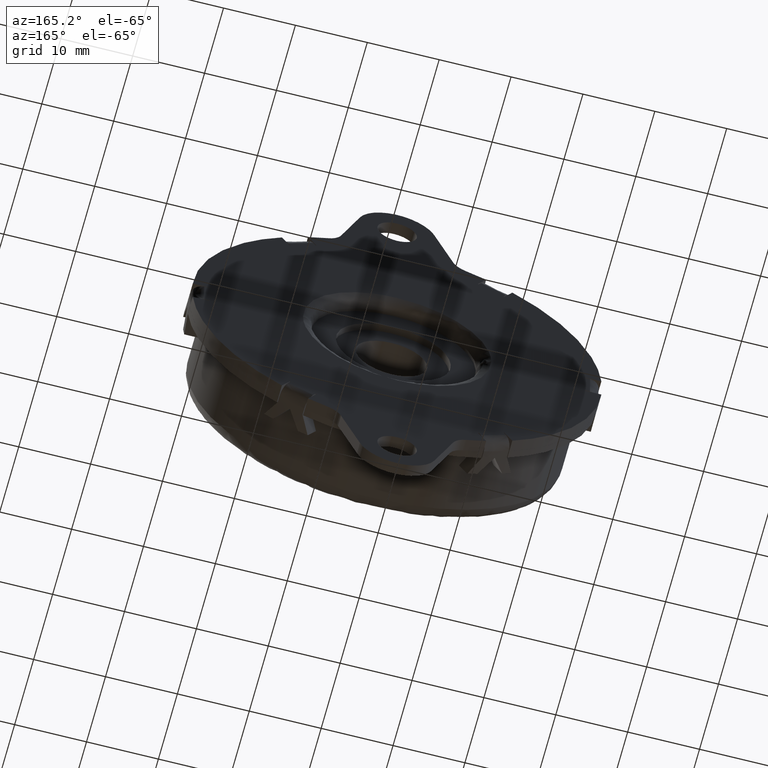
[diagram: clean part render]
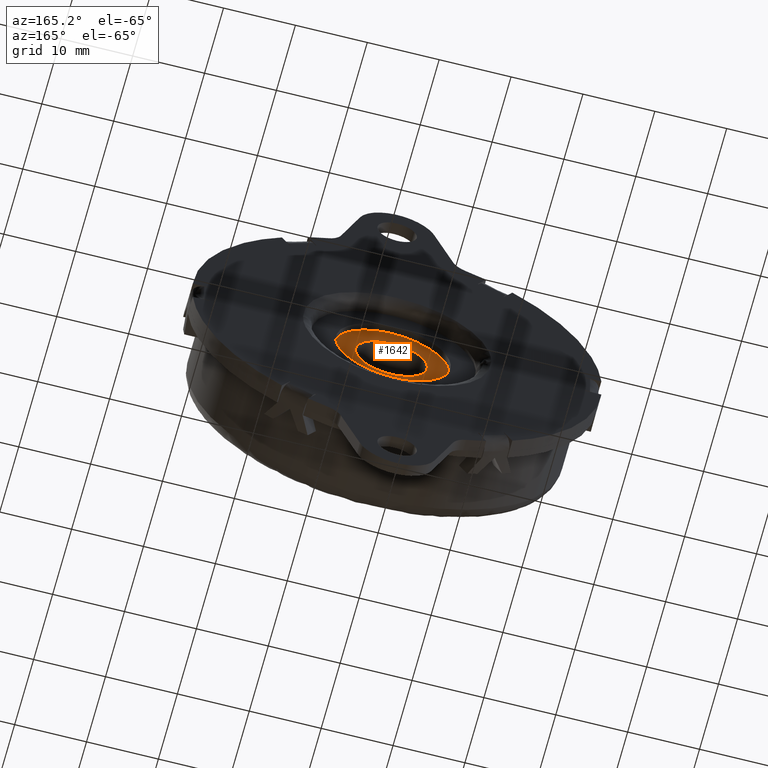
[diagram: same view with one face highlighted and labeled with its STEP entity id]
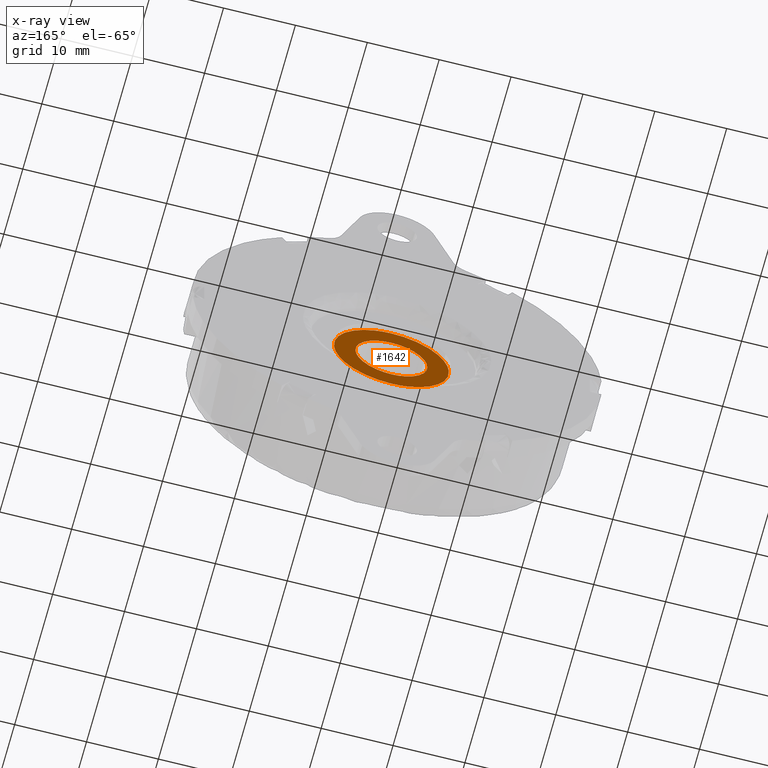
[diagram: x-ray of the same camera — body ghosted, the highlighted face saturated]
A machine part, auxiliary view. The second image highlights one B-rep face of the part: STEP entity #1642.
The next image is the same camera in x-ray: the body ghosted, the highlighted face saturated — about 0% of this face is hidden behind the body in this view.
In plain terms, the highlighted face is a freeform B-spline surface patch.
Its self-contained STEP definition (entity closure, byte-faithful):
#361=CARTESIAN_POINT('',(7.985078795888038,-2.999999999999397,-0.488381637056976));
#362=VERTEX_POINT('',#361);
#363=CARTESIAN_POINT('',(0.0,-3.0,8.0));
#364=VERTEX_POINT('',#363);
#365=CARTESIAN_POINT('',(7.985078795888039,-2.999999999999397,-0.488381637056975));
#366=CARTESIAN_POINT('',(7.999999999997245,-2.999999999999405,-0.244418757413873));
#367=CARTESIAN_POINT('',(7.999999999997288,-2.999999999999414,1.651169E-013));
#368=CARTESIAN_POINT('',(7.999999999998685,-2.999999999999716,8.000000000000080));
#369=CARTESIAN_POINT('',(0.0,-3.0,8.0));
#377=(BOUNDED_CURVE()B_SPLINE_CURVE(2,(#365,#366,#367,#368,#369),.UNSPECIFIED.,.F.,.U.)B_SPLINE_CURVE_WITH_KNOTS((3,2,3),(0.239333106570973,0.250000000000000,0.500000000000000),.UNSPECIFIED.)CURVE()GEOMETRIC_REPRESENTATION_ITEM()RATIONAL_B_SPLINE_CURVE((0.976072350997929,0.987502956995329,1.0,0.707106781186548,1.0))REPRESENTATION_ITEM(''));
#378=EDGE_CURVE('',#362,#364,#377,.T.);
#380=CARTESIAN_POINT('',(-7.985078795888038,-2.999999999999397,0.488381637056977));
#381=VERTEX_POINT('',#380);
#382=CARTESIAN_POINT('',(0.0,-3.0,8.0));
#383=CARTESIAN_POINT('',(-7.525654841935414,-2.999999999999699,7.999999999999914));
#384=CARTESIAN_POINT('',(-7.985078795888039,-2.999999999999397,0.488381637056977));
#392=(BOUNDED_CURVE()B_SPLINE_CURVE(2,(#382,#383,#384),.UNSPECIFIED.,.F.,.U.)B_SPLINE_CURVE_WITH_KNOTS((3,3),(0.500000000000000,0.739333106570973),.UNSPECIFIED.)CURVE()GEOMETRIC_REPRESENTATION_ITEM()RATIONAL_B_SPLINE_CURVE((1.0,0.719603824191218,0.976072350997929))REPRESENTATION_ITEM(''));
#393=EDGE_CURVE('',#364,#381,#392,.T.);
#428=CARTESIAN_POINT('',(0.0,-3.0,-8.0));
#429=VERTEX_POINT('',#428);
#430=CARTESIAN_POINT('',(0.0,-3.0,-8.0));
#431=CARTESIAN_POINT('',(7.525654841935418,-2.999999999999699,-7.999999999999915));
#432=CARTESIAN_POINT('',(7.985078795888039,-2.999999999999397,-0.488381637056975));
#440=(BOUNDED_CURVE()B_SPLINE_CURVE(2,(#430,#431,#432),.UNSPECIFIED.,.F.,.U.)B_SPLINE_CURVE_WITH_KNOTS((3,3),(0.0,0.239333106570973),.UNSPECIFIED.)CURVE()GEOMETRIC_REPRESENTATION_ITEM()RATIONAL_B_SPLINE_CURVE((1.0,0.719603824191218,0.976072350997929))REPRESENTATION_ITEM(''));
#441=EDGE_CURVE('',#429,#362,#440,.T.);
#447=CARTESIAN_POINT('',(-7.985078795888039,-2.999999999999397,0.488381637056977));
#448=CARTESIAN_POINT('',(-7.999999999997246,-2.999999999999405,0.244418757413872));
#449=CARTESIAN_POINT('',(-7.999999999997288,-2.999999999999415,-1.673944E-013));
#450=CARTESIAN_POINT('',(-7.999999999998687,-2.999999999999718,-8.000000000000082));
#451=CARTESIAN_POINT('',(0.0,-3.0,-8.0));
#459=(BOUNDED_CURVE()B_SPLINE_CURVE(2,(#447,#448,#449,#450,#451),.UNSPECIFIED.,.F.,.U.)B_SPLINE_CURVE_WITH_KNOTS((3,2,3),(0.739333106570973,0.750000000000000,1.0),.UNSPECIFIED.)CURVE()GEOMETRIC_REPRESENTATION_ITEM()RATIONAL_B_SPLINE_CURVE((0.976072350997929,0.987502956995329,1.0,0.707106781186548,1.0))REPRESENTATION_ITEM(''));
#460=EDGE_CURVE('',#381,#429,#459,.T.);
#1565=CARTESIAN_POINT('',(-8.799003098473435,-3.0,-8.799199968988896));
#1566=CARTESIAN_POINT('',(-8.799003098473435,-3.0,8.799200398142338));
#1567=CARTESIAN_POINT('',(8.799002812371139,-3.0,-8.799199968988896));
#1568=CARTESIAN_POINT('',(8.799002812371139,-3.0,8.799200398142338));
#1569=B_SPLINE_SURFACE_WITH_KNOTS('',1,1,((#1565,#1567),(#1566,#1568)),.UNSPECIFIED.,.F.,.F.,.U.,(2,2),(2,2),(0.0,17.598400367131230),(0.0,17.598005910844570),.UNSPECIFIED.);
#1570=ORIENTED_EDGE('',*,*,#460,.F.);
#1571=ORIENTED_EDGE('',*,*,#393,.F.);
#1572=ORIENTED_EDGE('',*,*,#378,.F.);
#1573=ORIENTED_EDGE('',*,*,#441,.F.);
#1574=EDGE_LOOP('',(#1570,#1571,#1572,#1573));
#1575=FACE_OUTER_BOUND('',#1574,.T.);
#1576=CARTESIAN_POINT('',(0.0,-3.0,-5.0));
#1577=VERTEX_POINT('',#1576);
#1578=CARTESIAN_POINT('',(4.999809615318942,-3.0,0.043632677711114));
#1579=VERTEX_POINT('',#1578);
#1580=CARTESIAN_POINT('',(0.0,-3.0,-5.0));
#1581=CARTESIAN_POINT('',(5.000000000000001,-3.0,-5.000000000000001));
#1582=CARTESIAN_POINT('',(5.0,-3.0,2.886697E-016));
#1583=CARTESIAN_POINT('',(4.999999999999999,-3.0,0.021816754213136));
#1584=CARTESIAN_POINT('',(4.999809615318942,-3.000000000000000,0.043632677711114));
#1592=(BOUNDED_CURVE()B_SPLINE_CURVE(2,(#1580,#1581,#1582,#1583,#1584),.UNSPECIFIED.,.F.,.U.)B_SPLINE_CURVE_WITH_KNOTS((3,2,3),(0.0,0.250000000000000,0.251539894342711),.UNSPECIFIED.)CURVE()GEOMETRIC_REPRESENTATION_ITEM()RATIONAL_B_SPLINE_CURVE((1.0,0.707106781186548,1.0,0.998195901557323,0.996414028082530))REPRESENTATION_ITEM(''));
#1593=EDGE_CURVE('',#1577,#1579,#1592,.T.);
#1594=ORIENTED_EDGE('',*,*,#1593,.T.);
#1595=CARTESIAN_POINT('',(0.0,-3.0,5.0));
#1596=VERTEX_POINT('',#1595);
#1597=CARTESIAN_POINT('',(4.999809615318942,-3.000000000000000,0.043632677711114));
#1598=CARTESIAN_POINT('',(4.956556052757536,-3.0,5.0));
#1599=CARTESIAN_POINT('',(0.0,-3.0,5.0));
#1607=(BOUNDED_CURVE()B_SPLINE_CURVE(2,(#1597,#1598,#1599),.UNSPECIFIED.,.F.,.U.)B_SPLINE_CURVE_WITH_KNOTS((3,3),(0.251539894342711,0.500000000000000),.UNSPECIFIED.)CURVE()GEOMETRIC_REPRESENTATION_ITEM()RATIONAL_B_SPLINE_CURVE((0.996414028082530,0.708910879629225,1.0))REPRESENTATION_ITEM(''));
#1608=EDGE_CURVE('',#1579,#1596,#1607,.T.);
#1609=ORIENTED_EDGE('',*,*,#1608,.T.);
#1610=CARTESIAN_POINT('',(-4.999809615318942,-3.0,-0.043632677711115));
#1611=VERTEX_POINT('',#1610);
#1612=CARTESIAN_POINT('',(0.0,-3.0,5.0));
#1613=CARTESIAN_POINT('',(-5.000000000000001,-3.0,5.000000000000001));
#1614=CARTESIAN_POINT('',(-5.0,-3.0,2.886697E-016));
#1615=CARTESIAN_POINT('',(-4.999999999999999,-3.0,-0.021816754213136));
#1616=CARTESIAN_POINT('',(-4.999809615318942,-3.000000000000000,-0.043632677711113));
#1624=(BOUNDED_CURVE()B_SPLINE_CURVE(2,(#1612,#1613,#1614,#1615,#1616),.UNSPECIFIED.,.F.,.U.)B_SPLINE_CURVE_WITH_KNOTS((3,2,3),(0.500000000000000,0.750000000000000,0.751539894342711),.UNSPECIFIED.)CURVE()GEOMETRIC_REPRESENTATION_ITEM()RATIONAL_B_SPLINE_CURVE((1.0,0.707106781186548,1.0,0.998195901557323,0.996414028082530))REPRESENTATION_ITEM(''));
#1625=EDGE_CURVE('',#1596,#1611,#1624,.T.);
#1626=ORIENTED_EDGE('',*,*,#1625,.T.);
#1627=CARTESIAN_POINT('',(-4.999809615318942,-3.000000000000000,-0.043632677711113));
#1628=CARTESIAN_POINT('',(-4.956556052757536,-3.0,-5.0));
#1629=CARTESIAN_POINT('',(0.0,-3.0,-5.0));
#1637=(BOUNDED_CURVE()B_SPLINE_CURVE(2,(#1627,#1628,#1629),.UNSPECIFIED.,.F.,.U.)B_SPLINE_CURVE_WITH_KNOTS((3,3),(0.751539894342711,1.0),.UNSPECIFIED.)CURVE()GEOMETRIC_REPRESENTATION_ITEM()RATIONAL_B_SPLINE_CURVE((0.996414028082530,0.708910879629225,1.0))REPRESENTATION_ITEM(''));
#1638=EDGE_CURVE('',#1611,#1577,#1637,.T.);
#1639=ORIENTED_EDGE('',*,*,#1638,.T.);
#1640=EDGE_LOOP('',(#1594,#1609,#1626,#1639));
#1641=FACE_BOUND('',#1640,.T.);
#1642=ADVANCED_FACE('',(#1575,#1641),#1569,.T.);